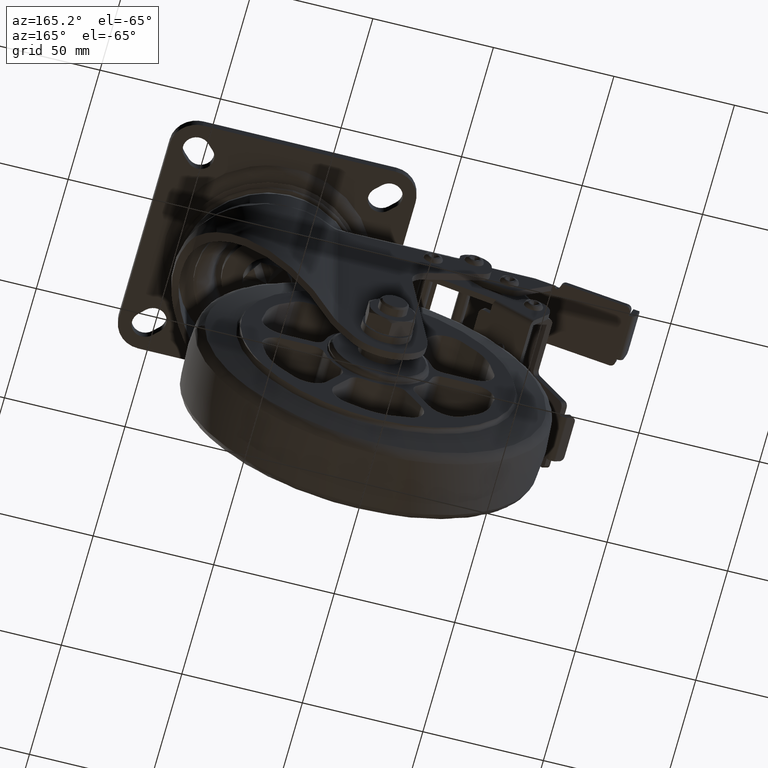
[diagram: clean part render]
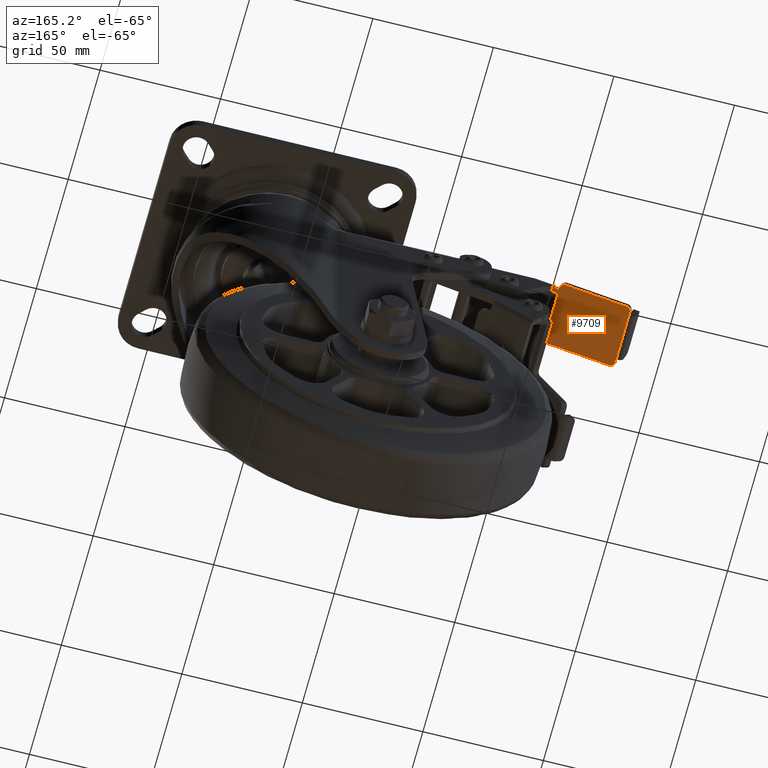
[diagram: same view with one face highlighted and labeled with its STEP entity id]
A machine part, auxiliary view. The second image highlights one B-rep face of the part: STEP entity #9709.
In plain terms, the highlighted face is a freeform B-spline surface patch.
Its self-contained STEP definition (entity closure, byte-faithful):
#3894=CARTESIAN_POINT('',(-67.830649641599294,27.899537362782301,79.431314808373699));
#3895=VERTEX_POINT('',#3894);
#3896=CARTESIAN_POINT('',(-67.792255284775891,27.782100895196301,79.441065563839700));
#3897=VERTEX_POINT('',#3896);
#3898=CARTESIAN_POINT('',(-67.830649641599294,27.899537362782301,79.431314808373699));
#3899=CARTESIAN_POINT('',(-67.822661816592074,27.858978323080969,79.433343422336648));
#3900=CARTESIAN_POINT('',(-67.809712573040173,27.819372945030899,79.436632054255355));
#3901=CARTESIAN_POINT('',(-67.792255284775891,27.782100895196301,79.441065563839700));
#3902=B_SPLINE_CURVE_WITH_KNOTS('',3,(#3898,#3899,#3900,#3901),.UNSPECIFIED.,.F.,.U.,(4,4),(0.000000019459595,0.124279001731182),.UNSPECIFIED.);
#3903=EDGE_CURVE('',#3895,#3897,#3902,.T.);
#3966=CARTESIAN_POINT('',(-67.792255284775891,27.500000000000000,79.441065563839700));
#3967=VERTEX_POINT('',#3966);
#4017=CARTESIAN_POINT('',(-65.853786939583301,27.500000000000000,79.933365275999392));
#4018=VERTEX_POINT('',#4017);
#4024=CARTESIAN_POINT('',(-66.823021235965172,26.500000000000011,79.687215388482500));
#4025=VERTEX_POINT('',#4024);
#4026=CARTESIAN_POINT('',(-66.823021235965172,26.500000000000011,79.687215388482500));
#4027=CARTESIAN_POINT('',(-66.648437450111103,26.499540298558980,79.731553253342014));
#4028=CARTESIAN_POINT('',(-66.379443906531463,26.577184881236960,79.799867726676652));
#4029=CARTESIAN_POINT('',(-66.069537541578327,26.839614686154611,79.878572552907258));
#4030=CARTESIAN_POINT('',(-65.895043591830458,27.140026959882800,79.922887602698609));
#4031=CARTESIAN_POINT('',(-65.853729436078908,27.385460555808329,79.933379879775458));
#4032=CARTESIAN_POINT('',(-65.853786939583301,27.500000000000000,79.933365275999392));
#4033=B_SPLINE_CURVE_WITH_KNOTS('',3,(#4026,#4027,#4028,#4029,#4030,#4031,#4032),.UNSPECIFIED.,.F.,.U.,(4,1,1,1,4),(0.000000522232225,0.540046168516165,0.834544473809522,1.227313262892075,1.570956288714689),.UNSPECIFIED.);
#4034=EDGE_CURVE('',#4025,#4018,#4033,.T.);
#4036=CARTESIAN_POINT('',(-67.792255284775891,27.500000000000000,79.441065563839700));
#4037=CARTESIAN_POINT('',(-67.792318581838870,27.385461765418860,79.441049488712139));
#4038=CARTESIAN_POINT('',(-67.750974058134176,27.140034318556911,79.451549478134126));
#4039=CARTESIAN_POINT('',(-67.559953874271358,26.810897046989471,79.500061583975395));
#4040=CARTESIAN_POINT('',(-67.235161091276524,26.562593809126270,79.582547013246113));
#4041=CARTESIAN_POINT('',(-66.965799466929084,26.499772328172440,79.650954965566086));
#4042=CARTESIAN_POINT('',(-66.823021235965172,26.500000000000011,79.687215388482500));
#4043=B_SPLINE_CURVE_WITH_KNOTS('',3,(#4036,#4037,#4038,#4039,#4040,#4041,#4042),.UNSPECIFIED.,.F.,.U.,(4,1,1,1,4),(0.000000522909157,0.343647704513238,0.736409479980243,1.129121412797437,1.570956144735646),.UNSPECIFIED.);
#4044=EDGE_CURVE('',#3967,#4025,#4043,.T.);
#4055=CARTESIAN_POINT('',(-67.792255284775891,27.500000000000000,79.441065563839700));
#4056=CARTESIAN_POINT('',(-67.792255284775891,27.782100895196301,79.441065563839700));
#4057=QUASI_UNIFORM_CURVE('',1,(#4055,#4056),.UNSPECIFIED.,.F.,.U.);
#4058=EDGE_CURVE('',#3967,#3897,#4057,.T.);
#4332=CARTESIAN_POINT('',(-94.932400916437601,2.499999999999945,72.548466097061905));
#4333=VERTEX_POINT('',#4332);
#4334=CARTESIAN_POINT('',(-96.871030961163513,4.499999999999949,72.056125319163897));
#4335=VERTEX_POINT('',#4334);
#4336=CARTESIAN_POINT('',(-94.932400916437601,2.499999999999945,72.548466097061905));
#4337=CARTESIAN_POINT('',(-95.122727506148848,2.499900897041379,72.500130138642049));
#4338=CARTESIAN_POINT('',(-95.487453156937249,2.555860413061286,72.407503228667053));
#4339=CARTESIAN_POINT('',(-95.982210026778191,2.789585364596823,72.281853168289970));
#4340=CARTESIAN_POINT('',(-96.410877468053911,3.161658567797102,72.172987393681879));
#4341=CARTESIAN_POINT('',(-96.770093217720685,3.731142357107158,72.081759796078686));
#4342=CARTESIAN_POINT('',(-96.871349660521958,4.221779814750946,72.056044381239573));
#4343=CARTESIAN_POINT('',(-96.871030961163513,4.499999999999949,72.056125319163897));
#4344=B_SPLINE_CURVE_WITH_KNOTS('',3,(#4336,#4337,#4338,#4339,#4340,#4341,#4342,#4343),.UNSPECIFIED.,.F.,.U.,(4,1,1,1,1,4),(0.000000490779804,0.589078439420998,1.129121647715883,1.669036880428361,2.307260587259841,3.141804985792550),.UNSPECIFIED.);
#4345=EDGE_CURVE('',#4333,#4335,#4344,.T.);
#4389=CARTESIAN_POINT('',(-96.871030961163513,27.500000000000000,72.056125319163897));
#4390=VERTEX_POINT('',#4389);
#4391=CARTESIAN_POINT('',(-94.932400916437601,29.500000000000000,72.548466097061905));
#4392=VERTEX_POINT('',#4391);
#4393=CARTESIAN_POINT('',(-96.871030961163513,27.500000000000000,72.056125319163897));
#4394=CARTESIAN_POINT('',(-96.871720973280262,27.827422975641358,72.055950081447079));
#4395=CARTESIAN_POINT('',(-96.739521623233514,28.366646811141798,72.089523857433136));
#4396=CARTESIAN_POINT('',(-96.340643005967294,28.907320786265611,72.190824365615910));
#4397=CARTESIAN_POINT('',(-95.913443736561888,29.251263412623949,72.299317278531092));
#4398=CARTESIAN_POINT('',(-95.455812742554144,29.453670942023049,72.415538730991798));
#4399=CARTESIAN_POINT('',(-95.090990830293777,29.500022988682218,72.508190087842152));
#4400=CARTESIAN_POINT('',(-94.932400916437601,29.500000000000000,72.548466097061905));
#4401=B_SPLINE_CURVE_WITH_KNOTS('',3,(#4393,#4394,#4395,#4396,#4397,#4398,#4399,#4400),.UNSPECIFIED.,.F.,.U.,(4,1,1,1,1,4),(0.000000498026330,0.981825532065466,1.619921235003247,2.012685335729634,2.650903622835570,3.141807345093061),.UNSPECIFIED.);
#4402=EDGE_CURVE('',#4390,#4392,#4401,.T.);
#4460=CARTESIAN_POINT('',(-69.730202885618198,2.499999999999945,78.948898101605295));
#4461=VERTEX_POINT('',#4460);
#4467=CARTESIAN_POINT('',(-67.791572843303697,0.499999999999945,79.441238878890886));
#4468=VERTEX_POINT('',#4467);
#4469=CARTESIAN_POINT('',(-67.791572843303697,0.499999999999945,79.441238878890886));
#4470=CARTESIAN_POINT('',(-67.790884352153284,0.827417221641643,79.441413730338283));
#4471=CARTESIAN_POINT('',(-67.923075889859447,1.366658727577736,79.407841938399869));
#4472=CARTESIAN_POINT('',(-68.321966999974507,1.907313671364962,79.306538257491724));
#4473=CARTESIAN_POINT('',(-68.724036177172380,2.230999877590403,79.204427464352563));
#4474=CARTESIAN_POINT('',(-69.175142004216326,2.444149488552486,79.089863164471893));
#4475=CARTESIAN_POINT('',(-69.539878581337916,2.500097060514543,78.997233479609903));
#4476=CARTESIAN_POINT('',(-69.730202885618198,2.499999999999945,78.948898101605295));
#4477=B_SPLINE_CURVE_WITH_KNOTS('',3,(#4469,#4470,#4471,#4472,#4473,#4474,#4475,#4476),.UNSPECIFIED.,.F.,.U.,(4,1,1,1,1,4),(0.000000498030664,0.981825531451172,1.619921233987762,2.012685334467565,2.552728950731545,3.141807343121739),.UNSPECIFIED.);
#4478=EDGE_CURVE('',#4468,#4461,#4477,.T.);
#4807=CARTESIAN_POINT('',(-96.902760631527102,26.0,72.048067149101101));
#4808=VERTEX_POINT('',#4807);
#4822=CARTESIAN_POINT('',(-96.902760631527102,6.0,72.048067149101101));
#4823=VERTEX_POINT('',#4822);
#4824=CARTESIAN_POINT('',(-96.902760631527102,6.0,72.048067149101101));
#4825=CARTESIAN_POINT('',(-96.902760631527102,26.0,72.048067149101101));
#4826=QUASI_UNIFORM_CURVE('',1,(#4824,#4825),.UNSPECIFIED.,.F.,.U.);
#4827=EDGE_CURVE('',#4823,#4808,#4826,.T.);
#4869=CARTESIAN_POINT('',(-96.871030961163513,6.0,72.056125319163897));
#4870=VERTEX_POINT('',#4869);
#4871=CARTESIAN_POINT('',(-96.902760631527102,6.0,72.048067149101101));
#4872=CARTESIAN_POINT('',(-96.871030961163513,6.0,72.056125319163897));
#4873=QUASI_UNIFORM_CURVE('',1,(#4871,#4872),.UNSPECIFIED.,.F.,.U.);
#4874=EDGE_CURVE('',#4823,#4870,#4873,.T.);
#4902=CARTESIAN_POINT('',(-96.871030961163513,26.0,72.056125319163897));
#4903=VERTEX_POINT('',#4902);
#4909=CARTESIAN_POINT('',(-96.902760631527102,26.0,72.048067149101101));
#4910=CARTESIAN_POINT('',(-96.871030961163513,26.0,72.056125319163897));
#4911=QUASI_UNIFORM_CURVE('',1,(#4909,#4910),.UNSPECIFIED.,.F.,.U.);
#4912=EDGE_CURVE('',#4808,#4903,#4911,.T.);
#4975=CARTESIAN_POINT('',(-69.730202885618198,2.499999999999945,78.948898101605295));
#4976=CARTESIAN_POINT('',(-94.932400916437601,2.499999999999945,72.548466097061905));
#4977=QUASI_UNIFORM_CURVE('',1,(#4975,#4976),.UNSPECIFIED.,.F.,.U.);
#4978=EDGE_CURVE('',#4461,#4333,#4977,.T.);
#5002=CARTESIAN_POINT('',(-69.730202885618198,29.500000000000000,78.948898101605295));
#5003=VERTEX_POINT('',#5002);
#5009=CARTESIAN_POINT('',(-69.730202885618198,29.500000000000000,78.948898101605295));
#5010=CARTESIAN_POINT('',(-94.932400916437601,29.500000000000000,72.548466097061905));
#5011=QUASI_UNIFORM_CURVE('',1,(#5009,#5010),.UNSPECIFIED.,.F.,.U.);
#5012=EDGE_CURVE('',#5003,#4392,#5011,.T.);
#5029=CARTESIAN_POINT('',(-96.871030961163513,27.500000000000000,72.056125319163897));
#5030=CARTESIAN_POINT('',(-96.871030961163513,26.0,72.056125319163897));
#5031=QUASI_UNIFORM_CURVE('',1,(#5029,#5030),.UNSPECIFIED.,.F.,.U.);
#5032=EDGE_CURVE('',#4390,#4903,#5031,.T.);
#5072=CARTESIAN_POINT('',(-67.791569434623895,25.0,79.441226157515544));
#5073=VERTEX_POINT('',#5072);
#5079=CARTESIAN_POINT('',(-65.018627884886698,25.0,80.145454925354187));
#5080=VERTEX_POINT('',#5079);
#5081=CARTESIAN_POINT('',(-65.018627884886698,25.0,80.145454925354187));
#5082=CARTESIAN_POINT('',(-67.791569434623895,25.0,79.441226157515544));
#5083=QUASI_UNIFORM_CURVE('',1,(#5081,#5082),.UNSPECIFIED.,.F.,.U.);
#5084=EDGE_CURVE('',#5080,#5073,#5083,.T.);
#5350=CARTESIAN_POINT('',(-65.018636456842401,27.500000000000000,80.145462803040900));
#5351=VERTEX_POINT('',#5350);
#5352=CARTESIAN_POINT('',(-65.018636456842401,27.500000000000000,80.145462803040900));
#5353=CARTESIAN_POINT('',(-65.018627884886698,25.0,80.145454925354187));
#5354=QUASI_UNIFORM_CURVE('',1,(#5352,#5353),.UNSPECIFIED.,.F.,.U.);
#5355=EDGE_CURVE('',#5351,#5080,#5354,.T.);
#9509=CARTESIAN_POINT('',(-67.791569434623895,25.0,79.441226157515544));
#9510=CARTESIAN_POINT('',(-67.791572843303697,0.499999999999945,79.441238878890886));
#9511=QUASI_UNIFORM_CURVE('',1,(#9509,#9510),.UNSPECIFIED.,.F.,.U.);
#9512=EDGE_CURVE('',#5073,#4468,#9511,.T.);
#9522=CARTESIAN_POINT('',(-96.871030961163513,6.0,72.056125319163897));
#9523=CARTESIAN_POINT('',(-96.871030961163513,4.499999999999949,72.056125319163897));
#9524=QUASI_UNIFORM_CURVE('',1,(#9522,#9523),.UNSPECIFIED.,.F.,.U.);
#9525=EDGE_CURVE('',#4870,#4335,#9524,.T.);
#9618=CARTESIAN_POINT('',(-65.018636456842401,27.500000000000000,80.145462803040900));
#9619=CARTESIAN_POINT('',(-65.853786939583301,27.500000000000000,79.933365275999392));
#9620=QUASI_UNIFORM_CURVE('',1,(#9618,#9619),.UNSPECIFIED.,.F.,.U.);
#9621=EDGE_CURVE('',#5351,#4018,#9620,.T.);
#9668=CARTESIAN_POINT('',(-69.730202885618198,29.500000000000000,78.948898101605295));
#9669=CARTESIAN_POINT('',(-69.467398761799032,29.500315025754968,79.015640689809828));
#9670=CARTESIAN_POINT('',(-68.969818762950595,29.393971101557462,79.142007721191362));
#9671=CARTESIAN_POINT('',(-68.373303931285577,28.983395158709548,79.293500563804216));
#9672=CARTESIAN_POINT('',(-67.997069060346561,28.461544493948111,79.389050392681369));
#9673=CARTESIAN_POINT('',(-67.866523882962269,28.081291584484980,79.422204069609236));
#9674=CARTESIAN_POINT('',(-67.830649641599294,27.899537362782301,79.431314808373699));
#9675=B_SPLINE_CURVE_WITH_KNOTS('',3,(#9668,#9669,#9670,#9671,#9672,#9673,#9674),.UNSPECIFIED.,.F.,.U.,(4,1,1,1,4),(0.000000321579717,0.813301788630985,1.540962575171925,2.183071741739597,2.739535017913716),.UNSPECIFIED.);
#9676=EDGE_CURVE('',#5003,#3895,#9675,.T.);
#9683=CARTESIAN_POINT('',(-98.495376059051267,-0.948549943792430,71.643601366363015));
#9684=CARTESIAN_POINT('',(-63.426019417219230,-0.948549943792430,80.549928995192872));
#9685=CARTESIAN_POINT('',(-98.495376059051267,30.948550721632991,71.643601366363015));
#9686=CARTESIAN_POINT('',(-63.426019417219230,30.948550721632991,80.549928995192872));
#9687=B_SPLINE_SURFACE_WITH_KNOTS('',1,1,((#9683,#9685),(#9684,#9686)),.UNSPECIFIED.,.F.,.F.,.U.,(2,2),(2,2),(0.0,36.182626315734282),(0.0,31.897100665425420),.UNSPECIFIED.);
#9688=ORIENTED_EDGE('',*,*,#4058,.F.);
#9689=ORIENTED_EDGE('',*,*,#4044,.T.);
#9690=ORIENTED_EDGE('',*,*,#4034,.T.);
#9691=ORIENTED_EDGE('',*,*,#9621,.F.);
#9692=ORIENTED_EDGE('',*,*,#5355,.T.);
#9693=ORIENTED_EDGE('',*,*,#5084,.T.);
#9694=ORIENTED_EDGE('',*,*,#9512,.T.);
#9695=ORIENTED_EDGE('',*,*,#4478,.T.);
#9696=ORIENTED_EDGE('',*,*,#4978,.T.);
#9697=ORIENTED_EDGE('',*,*,#4345,.T.);
#9698=ORIENTED_EDGE('',*,*,#9525,.F.);
#9699=ORIENTED_EDGE('',*,*,#4874,.F.);
#9700=ORIENTED_EDGE('',*,*,#4827,.T.);
#9701=ORIENTED_EDGE('',*,*,#4912,.T.);
#9702=ORIENTED_EDGE('',*,*,#5032,.F.);
#9703=ORIENTED_EDGE('',*,*,#4402,.T.);
#9704=ORIENTED_EDGE('',*,*,#5012,.F.);
#9705=ORIENTED_EDGE('',*,*,#9676,.T.);
#9706=ORIENTED_EDGE('',*,*,#3903,.T.);
#9707=EDGE_LOOP('',(#9688,#9689,#9690,#9691,#9692,#9693,#9694,#9695,#9696,#9697,#9698,#9699,#9700,#9701,#9702,#9703,#9704,#9705,#9706));
#9708=FACE_OUTER_BOUND('',#9707,.T.);
#9709=ADVANCED_FACE('',(#9708),#9687,.F.);